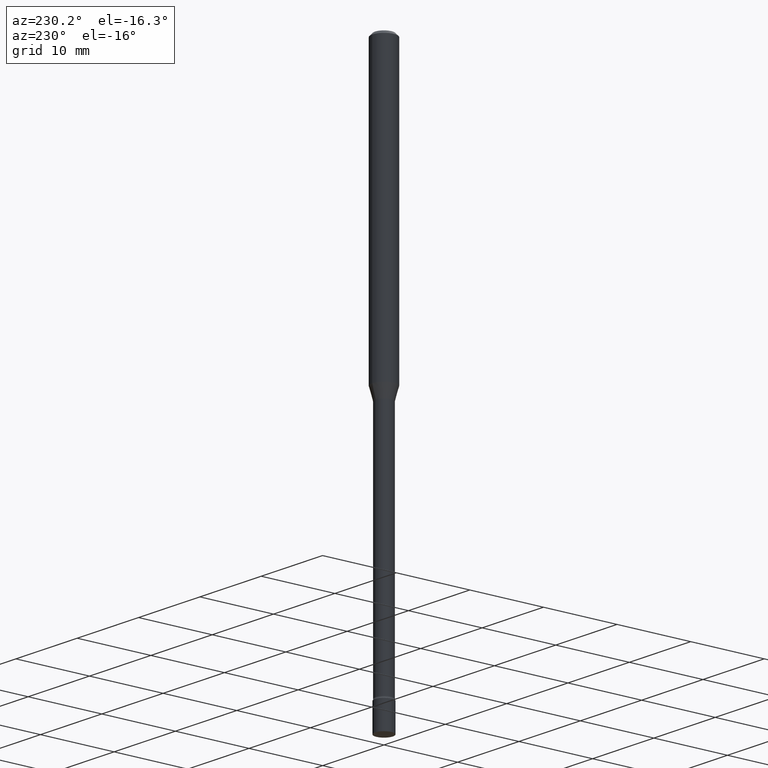
[diagram: clean part render]
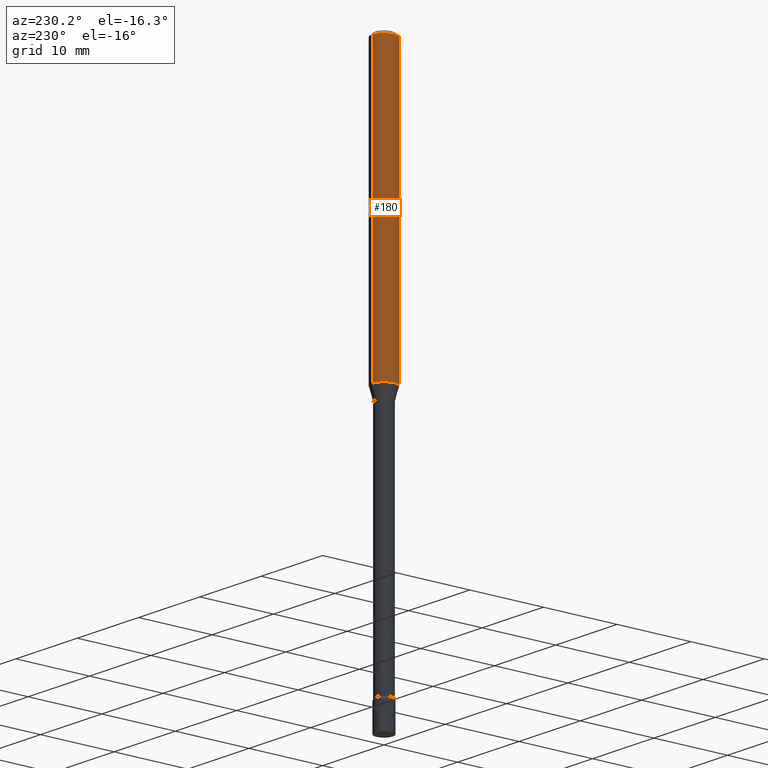
[diagram: same view with one face highlighted and labeled with its STEP entity id]
A machine part, auxiliary view. The second image highlights one B-rep face of the part: STEP entity #180.
In plain terms, the highlighted cylindrical surface (edge-blend (fillet) strip) has radius 1.5875 mm, axis along (-0, 0, 1).
Its self-contained STEP definition (entity closure, byte-faithful):
#16 = VECTOR ( 'NONE', #353, 39.37007874015748143 ) ;
#21 = DIRECTION ( 'NONE',  ( -6.982962677686265922E-15, -1.000000000000000000, 3.491481019679928662E-15 ) ) ;
#28 = ORIENTED_EDGE ( 'NONE', *, *, #280, .F. ) ;
#31 = VERTEX_POINT ( 'NONE', #172 ) ;
#33 = LINE ( 'NONE', #197, #303 ) ;
#36 = LINE ( 'NONE', #194, #16 ) ;
#42 = VERTEX_POINT ( 'NONE', #446 ) ;
#149 = VERTEX_POINT ( 'NONE', #222 ) ;
#172 = CARTESIAN_POINT ( 'NONE',  ( -4.364351673553545436E-16, -0.06250000000000523193, -1.508382893084895704 ) ) ;
#180 = ADVANCED_FACE ( 'NONE', ( #265 ), #262, .T. ) ;
#194 = CARTESIAN_POINT ( 'NONE',  ( 4.440892098500625669E-16, 0.06250000000000000000, -2.182175637299955414E-16 ) ) ;
#197 = CARTESIAN_POINT ( 'NONE',  ( -4.364351673553916201E-16, -0.06250000000000000000, 2.182175637299955414E-16 ) ) ;
#212 = EDGE_CURVE ( 'NONE', #149, #31, #343, .T. ) ;
#218 = AXIS2_PLACEMENT_3D ( 'NONE', #416, #267, #21 ) ;
#222 = CARTESIAN_POINT ( 'NONE',  ( 4.440892098500995940E-16, 0.06249999999999476807, -1.508382893084896370 ) ) ;
#241 = ORIENTED_EDGE ( 'NONE', *, *, #393, .T. ) ;
#262 = CYLINDRICAL_SURFACE ( 'NONE', #218, 0.06250000000000000000 ) ;
#265 = FACE_OUTER_BOUND ( 'NONE', #428, .T. ) ;
#267 = DIRECTION ( 'NONE',  ( -2.445469029055619713E-29, 3.491481019679928662E-15, 1.000000000000000000 ) ) ;
#280 = EDGE_CURVE ( 'NONE', #473, #42, #420, .T. ) ;
#287 = AXIS2_PLACEMENT_3D ( 'NONE', #469, #388, #429 ) ;
#303 = VECTOR ( 'NONE', #356, 39.37007874015748143 ) ;
#304 = ORIENTED_EDGE ( 'NONE', *, *, #212, .T. ) ;
#306 = DIRECTION ( 'NONE',  ( -2.445469029055619713E-29, 3.491481019679928662E-15, 1.000000000000000000 ) ) ;
#343 = CIRCLE ( 'NONE', #501, 0.06250000000000000000 ) ;
#353 = DIRECTION ( 'NONE',  ( -2.445469029055619993E-29, 3.491481019679928662E-15, 1.000000000000000000 ) ) ;
#356 = DIRECTION ( 'NONE',  ( -2.445469029055619993E-29, 3.491481019679928662E-15, 1.000000000000000000 ) ) ;
#378 = EDGE_CURVE ( 'NONE', #149, #473, #36, .T. ) ;
#379 = CARTESIAN_POINT ( 'NONE',  ( 3.688703648996427181E-29, -5.266490241615814393E-15, -1.508382893084896148 ) ) ;
#388 = DIRECTION ( 'NONE',  ( -2.445469029055619713E-29, 3.491481019679928662E-15, 1.000000000000000000 ) ) ;
#393 = EDGE_CURVE ( 'NONE', #31, #42, #33, .T. ) ;
#395 = ORIENTED_EDGE ( 'NONE', *, *, #378, .F. ) ;
#400 = CARTESIAN_POINT ( 'NONE',  ( 4.440892098500996926E-16, 0.06249999999999995143, -0.01500000000000024751 ) ) ;
#416 = CARTESIAN_POINT ( 'NONE',  ( 0.000000000000000000, 0.000000000000000000, 0.000000000000000000 ) ) ;
#417 = DIRECTION ( 'NONE',  ( -6.982962677686265922E-15, -1.000000000000000000, 4.370956789862821150E-15 ) ) ;
#420 = CIRCLE ( 'NONE', #287, 0.06250000000000000000 ) ;
#428 = EDGE_LOOP ( 'NONE', ( #395, #304, #241, #28 ) ) ;
#429 = DIRECTION ( 'NONE',  ( -6.982962677686265922E-15, -1.000000000000000000, 3.483106191921935554E-15 ) ) ;
#446 = CARTESIAN_POINT ( 'NONE',  ( -4.364351673553912750E-16, -0.06250000000000005551, -0.01499999999999981209 ) ) ;
#469 = CARTESIAN_POINT ( 'NONE',  ( 3.668203543583436453E-31, -5.237221529519903815E-17, -0.01500000000000003067 ) ) ;
#473 = VERTEX_POINT ( 'NONE', #400 ) ;
#501 = AXIS2_PLACEMENT_3D ( 'NONE', #379, #306, #417 ) ;